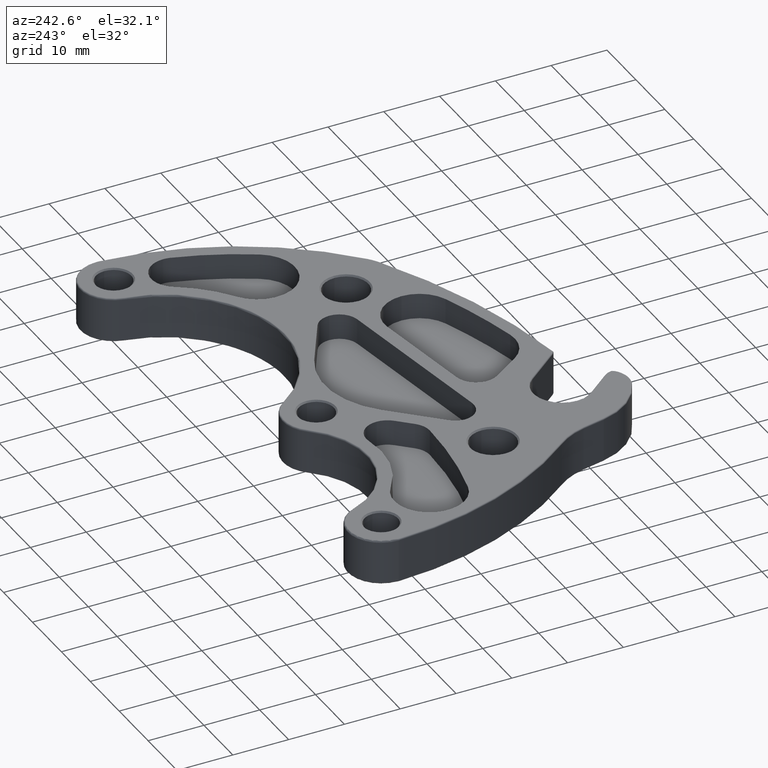
[diagram: clean part render]
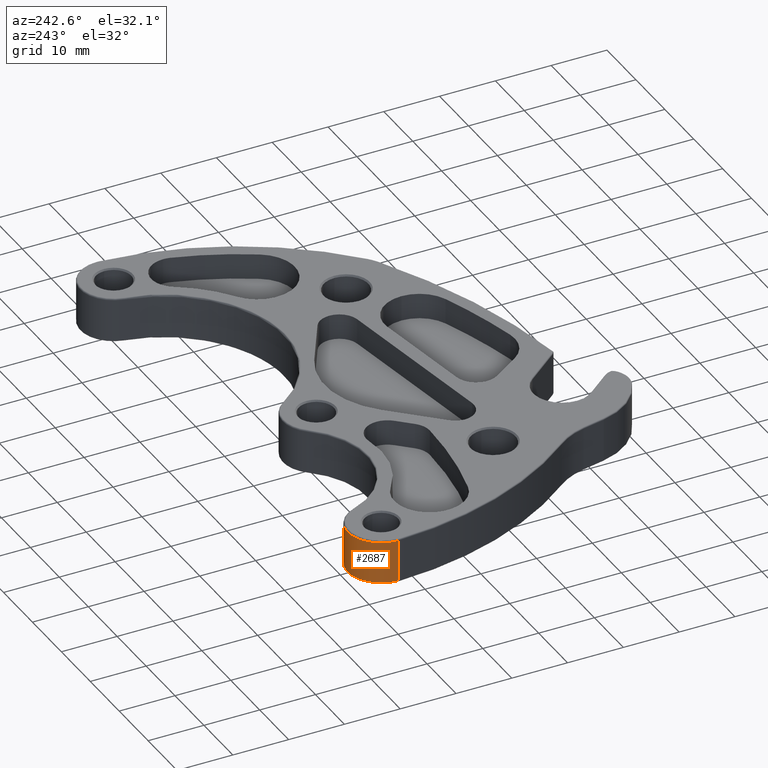
[diagram: same view with one face highlighted and labeled with its STEP entity id]
A machine part, auxiliary view. The second image highlights one B-rep face of the part: STEP entity #2687.
In plain terms, the highlighted cylindrical surface (partial cylindrical patch) has radius 5.9944 mm, axis along (0, -0, -1).
Its self-contained STEP definition (entity closure, byte-faithful):
#91 = ORIENTED_EDGE ( 'NONE', *, *, #809, .F. ) ;
#256 = EDGE_LOOP ( 'NONE', ( #91, #3382, #2324, #2412 ) ) ;
#257 = CARTESIAN_POINT ( 'NONE',  ( 0.5136848037911746490, -4.879352646928948545, 0.3049999999999994937 ) ) ;
#376 = AXIS2_PLACEMENT_3D ( 'NONE', #2110, #2407, #2386 ) ;
#486 = CARTESIAN_POINT ( 'NONE',  ( 0.05564894993785037686, -4.959328140699000187, 0.009999999999999995004 ) ) ;
#487 = VERTEX_POINT ( 'NONE', #2700 ) ;
#530 = DIRECTION ( 'NONE',  ( 9.013352139732279557E-31, -3.389636702121541407E-30, -1.000000000000000000 ) ) ;
#799 = DIRECTION ( 'NONE',  ( 9.013352139732279557E-31, -3.389636702121541407E-30, -1.000000000000000000 ) ) ;
#809 = EDGE_CURVE ( 'NONE', #487, #3125, #1429, .T. ) ;
#932 = CARTESIAN_POINT ( 'NONE',  ( 0.2916489499380013894, -4.959328140699000187, 0.3049999999999994937 ) ) ;
#1052 = AXIS2_PLACEMENT_3D ( 'NONE', #932, #2845, #1217 ) ;
#1065 = CARTESIAN_POINT ( 'NONE',  ( 0.05564894993785273608, -4.959328140699000187, 0.3149999999999997247 ) ) ;
#1106 = CARTESIAN_POINT ( 'NONE',  ( 0.5136848037911746490, -4.879352646928948545, 0.3149999999999991696 ) ) ;
#1119 = DIRECTION ( 'NONE',  ( -9.013352139732279557E-31, 3.389636702121541407E-30, 1.000000000000000000 ) ) ;
#1133 = EDGE_CURVE ( 'NONE', #2869, #3306, #2755, .T. ) ;
#1217 = DIRECTION ( 'NONE',  ( 1.000000000000000000, 0.0000000000000000000, 0.0000000000000000000 ) ) ;
#1299 = VECTOR ( 'NONE', #530, 39.37007874015748143 ) ;
#1429 = LINE ( 'NONE', #1065, #2069 ) ;
#1461 = CARTESIAN_POINT ( 'NONE',  ( 0.5136848037911707632, -4.879352646928945880, 0.009999999999999975922 ) ) ;
#1707 = CYLINDRICAL_SURFACE ( 'NONE', #376, 0.2360000000001486742 ) ;
#1714 = CIRCLE ( 'NONE', #2332, 0.2360000000001486464 ) ;
#2069 = VECTOR ( 'NONE', #799, 39.37007874015748143 ) ;
#2110 = CARTESIAN_POINT ( 'NONE',  ( 0.2916489499380013894, -4.959328140699000187, 0.3149999999999997247 ) ) ;
#2268 = CIRCLE ( 'NONE', #1052, 0.2360000000001486464 ) ;
#2324 = ORIENTED_EDGE ( 'NONE', *, *, #1133, .T. ) ;
#2332 = AXIS2_PLACEMENT_3D ( 'NONE', #2762, #1119, #3047 ) ;
#2386 = DIRECTION ( 'NONE',  ( -1.000000000000000000, 0.0000000000000000000, 0.0000000000000000000 ) ) ;
#2407 = DIRECTION ( 'NONE',  ( 9.013352139732279557E-31, -3.389636702121541407E-30, -1.000000000000000000 ) ) ;
#2412 = ORIENTED_EDGE ( 'NONE', *, *, #3602, .T. ) ;
#2527 = FACE_OUTER_BOUND ( 'NONE', #256, .T. ) ;
#2687 = ADVANCED_FACE ( 'NONE', ( #2527 ), #1707, .T. ) ;
#2700 = CARTESIAN_POINT ( 'NONE',  ( 0.05564894993785256261, -4.959328140699000187, 0.3049999999999994937 ) ) ;
#2755 = LINE ( 'NONE', #1106, #1299 ) ;
#2762 = CARTESIAN_POINT ( 'NONE',  ( 0.2916489499379992245, -4.959328140698997522, 0.009999999999999995004 ) ) ;
#2845 = DIRECTION ( 'NONE',  ( 9.013352139732279557E-31, -3.389636702121541407E-30, -1.000000000000000000 ) ) ;
#2869 = VERTEX_POINT ( 'NONE', #257 ) ;
#2948 = EDGE_CURVE ( 'NONE', #487, #2869, #2268, .T. ) ;
#3047 = DIRECTION ( 'NONE',  ( 1.000000000000000000, 0.0000000000000000000, 0.0000000000000000000 ) ) ;
#3125 = VERTEX_POINT ( 'NONE', #486 ) ;
#3306 = VERTEX_POINT ( 'NONE', #1461 ) ;
#3382 = ORIENTED_EDGE ( 'NONE', *, *, #2948, .T. ) ;
#3602 = EDGE_CURVE ( 'NONE', #3306, #3125, #1714, .T. ) ;